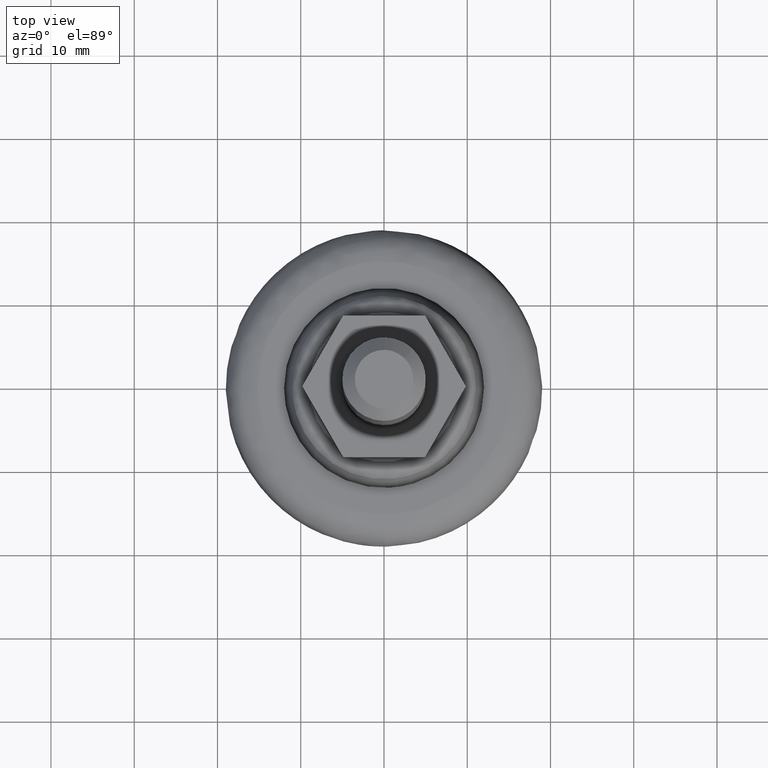
[diagram: clean part render]
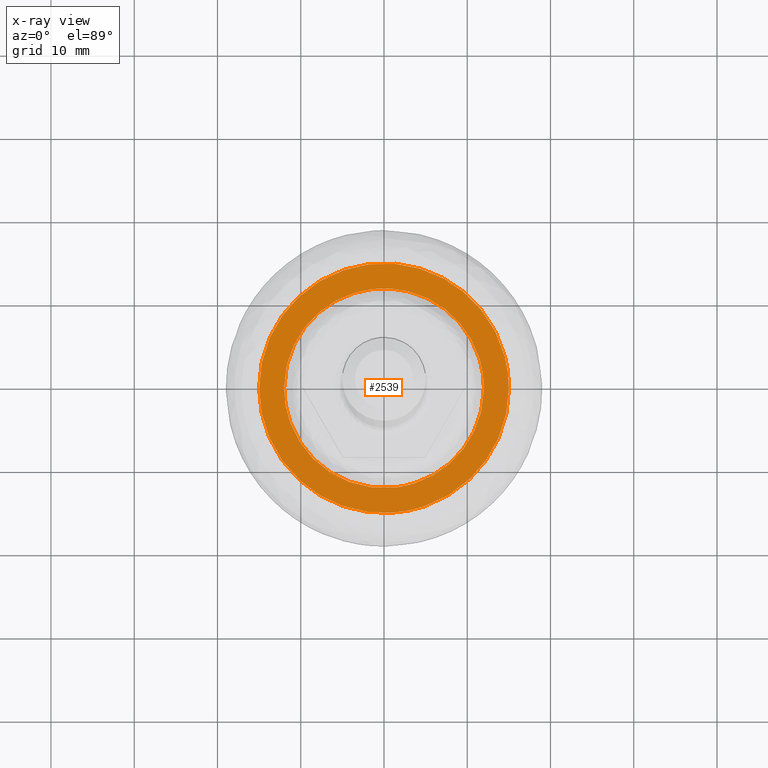
[diagram: x-ray — body ghosted, one internal face saturated and labeled with its STEP entity id]
A machine part, top view, then the same camera in x-ray: the body is ghosted and one INTERNAL B-rep face — a face not visible from any outside direction — is saturated and labeled: STEP entity #2539.
In plain terms, the highlighted face is a freeform B-spline surface patch.
Its self-contained STEP definition (entity closure, byte-faithful):
#1238=CARTESIAN_POINT('',(-1.770494747785739,14.895145126775560,5.599999999999231));
#1239=VERTEX_POINT('',#1238);
#1240=CARTESIAN_POINT('',(15.0,0.0,5.599999999999881));
#1241=VERTEX_POINT('',#1240);
#1242=CARTESIAN_POINT('',(-1.770494747785739,14.895145126775565,5.599999999999232));
#1243=CARTESIAN_POINT('',(-0.888352309519666,15.000000000000002,5.599999999999880));
#1244=CARTESIAN_POINT('',(0.0,15.0,5.599999999999881));
#1245=CARTESIAN_POINT('',(14.999999999999996,14.999999999999996,5.599999999999882));
#1246=CARTESIAN_POINT('',(15.0,0.0,5.599999999999881));
#1254=(BOUNDED_CURVE()B_SPLINE_CURVE(2,(#1242,#1243,#1244,#1245,#1246),.UNSPECIFIED.,.F.,.U.)B_SPLINE_CURVE_WITH_KNOTS((3,2,3),(0.229562686507245,0.250000000000000,0.500000000000000),.UNSPECIFIED.)CURVE()GEOMETRIC_REPRESENTATION_ITEM()RATIONAL_B_SPLINE_CURVE((0.956027171660564,0.976056197868829,1.0,0.707106781186547,1.0))REPRESENTATION_ITEM(''));
#1255=EDGE_CURVE('',#1239,#1241,#1254,.T.);
#1257=CARTESIAN_POINT('',(0.915726412715349,-14.972022079099821,5.599999999999865));
#1258=VERTEX_POINT('',#1257);
#1259=CARTESIAN_POINT('',(15.0,0.0,5.599999999999881));
#1260=CARTESIAN_POINT('',(14.999999999999995,-14.110592590174056,5.599999999999881));
#1261=CARTESIAN_POINT('',(0.915726412715349,-14.972022079099828,5.599999999999865));
#1269=(BOUNDED_CURVE()B_SPLINE_CURVE(2,(#1259,#1260,#1261),.UNSPECIFIED.,.F.,.U.)B_SPLINE_CURVE_WITH_KNOTS((3,3),(0.500000000000000,0.739332981606866),.UNSPECIFIED.)CURVE()GEOMETRIC_REPRESENTATION_ITEM()RATIONAL_B_SPLINE_CURVE((1.0,0.719603970595777,0.976072083175867))REPRESENTATION_ITEM(''));
#1270=EDGE_CURVE('',#1241,#1258,#1269,.T.);
#1337=CARTESIAN_POINT('',(-15.0,0.0,5.599999999999881));
#1338=VERTEX_POINT('',#1337);
#1339=CARTESIAN_POINT('',(-15.0,0.0,5.599999999999881));
#1340=CARTESIAN_POINT('',(-15.000000000000005,13.322634797717694,5.599999999999881));
#1341=CARTESIAN_POINT('',(-1.770494747785739,14.895145126775565,5.599999999999232));
#1349=(BOUNDED_CURVE()B_SPLINE_CURVE(2,(#1339,#1340,#1341),.UNSPECIFIED.,.F.,.U.)B_SPLINE_CURVE_WITH_KNOTS((3,3),(0.0,0.229562686507245),.UNSPECIFIED.)CURVE()GEOMETRIC_REPRESENTATION_ITEM()RATIONAL_B_SPLINE_CURVE((1.0,0.731050583317718,0.956027171660564))REPRESENTATION_ITEM(''));
#1350=EDGE_CURVE('',#1338,#1239,#1349,.T.);
#1384=CARTESIAN_POINT('',(0.915726412715349,-14.972022079099828,5.599999999999865));
#1385=CARTESIAN_POINT('',(0.458290606969377,-15.000000000000002,5.599999999999881));
#1386=CARTESIAN_POINT('',(0.0,-15.0,5.599999999999881));
#1387=CARTESIAN_POINT('',(-14.999999999999996,-14.999999999999996,5.599999999999882));
#1388=CARTESIAN_POINT('',(-15.0,0.0,5.599999999999881));
#1396=(BOUNDED_CURVE()B_SPLINE_CURVE(2,(#1384,#1385,#1386,#1387,#1388),.UNSPECIFIED.,.F.,.U.)B_SPLINE_CURVE_WITH_KNOTS((3,2,3),(0.739332981606866,0.750000000000000,1.0),.UNSPECIFIED.)CURVE()GEOMETRIC_REPRESENTATION_ITEM()RATIONAL_B_SPLINE_CURVE((0.976072083175867,0.987502810590771,1.0,0.707106781186547,1.0))REPRESENTATION_ITEM(''));
#1397=EDGE_CURVE('',#1258,#1338,#1396,.T.);
#2302=CARTESIAN_POINT('',(12.000000201346939,0.0,5.599995925281528));
#2303=VERTEX_POINT('',#2302);
#2317=CARTESIAN_POINT('',(-11.999999880277160,0.0,5.599999999999890));
#2318=VERTEX_POINT('',#2317);
#2319=CARTESIAN_POINT('',(-11.999999880277160,0.0,5.599999999999890));
#2320=CARTESIAN_POINT('',(-11.999999880277159,11.999999880277159,5.599999999999890));
#2321=CARTESIAN_POINT('',(0.000000160534888,11.999999880277160,5.599997962640709));
#2322=CARTESIAN_POINT('',(12.000000201346934,11.999999880277159,5.599995925281528));
#2323=CARTESIAN_POINT('',(12.000000201346939,0.0,5.599995925281528));
#2331=(BOUNDED_CURVE()B_SPLINE_CURVE(2,(#2319,#2320,#2321,#2322,#2323),.UNSPECIFIED.,.F.,.U.)B_SPLINE_CURVE_WITH_KNOTS((3,2,3),(0.0,0.250000000000000,0.500000000000000),.UNSPECIFIED.)CURVE()GEOMETRIC_REPRESENTATION_ITEM()RATIONAL_B_SPLINE_CURVE((1.0,0.707106781186547,1.0,0.707106781186547,1.0))REPRESENTATION_ITEM(''));
#2332=EDGE_CURVE('',#2318,#2303,#2331,.T.);
#2334=CARTESIAN_POINT('',(1.385554157664083,-11.919741484824790,5.599999861191618));
#2335=VERTEX_POINT('',#2334);
#2336=CARTESIAN_POINT('',(1.385554157664083,-11.919741484824792,5.599999861191619));
#2337=CARTESIAN_POINT('',(0.695101567559153,-11.999999880277159,5.599999999999890));
#2338=CARTESIAN_POINT('',(0.0,-11.999999880277160,5.599999999999890));
#2339=CARTESIAN_POINT('',(-11.999999880277159,-11.999999880277159,5.599999999999890));
#2340=CARTESIAN_POINT('',(-11.999999880277160,0.0,5.599999999999890));
#2348=(BOUNDED_CURVE()B_SPLINE_CURVE(2,(#2336,#2337,#2338,#2339,#2340),.UNSPECIFIED.,.F.,.U.)B_SPLINE_CURVE_WITH_KNOTS((3,2,3),(0.730000235313903,0.750000000000000,1.0),.UNSPECIFIED.)CURVE()GEOMETRIC_REPRESENTATION_ITEM()RATIONAL_B_SPLINE_CURVE((0.956886581345987,0.976568818182309,1.0,0.707106781186547,1.0))REPRESENTATION_ITEM(''));
#2349=EDGE_CURVE('',#2335,#2318,#2348,.T.);
#2392=CARTESIAN_POINT('',(12.000000201346939,0.0,5.599995925281528));
#2393=CARTESIAN_POINT('',(12.000000041442814,-10.685915274128932,5.599997893236573));
#2394=CARTESIAN_POINT('',(1.385554157664083,-11.919741484824792,5.599999861191619));
#2402=(BOUNDED_CURVE()B_SPLINE_CURVE(2,(#2392,#2393,#2394),.UNSPECIFIED.,.F.,.U.)B_SPLINE_CURVE_WITH_KNOTS((3,3),(0.500000000000000,0.730000235313903),.UNSPECIFIED.)CURVE()GEOMETRIC_REPRESENTATION_ITEM()RATIONAL_B_SPLINE_CURVE((1.0,0.730537963004238,0.956886581345987))REPRESENTATION_ITEM(''));
#2403=EDGE_CURVE('',#2303,#2335,#2402,.T.);
#2523=CARTESIAN_POINT('',(-16.498499941854181,-16.498135418423988,5.599999999999881));
#2524=CARTESIAN_POINT('',(16.498500746516889,-16.498135418423988,5.599999999999881));
#2525=CARTESIAN_POINT('',(-16.498499941854181,16.498227149972301,5.599999999999881));
#2526=CARTESIAN_POINT('',(16.498500746516889,16.498227149972301,5.599999999999881));
#2527=B_SPLINE_SURFACE_WITH_KNOTS('',1,1,((#2523,#2525),(#2524,#2526)),.UNSPECIFIED.,.F.,.F.,.U.,(2,2),(2,2),(0.0,32.997000688371060),(0.0,32.996362568396293),.UNSPECIFIED.);
#2528=ORIENTED_EDGE('',*,*,#1397,.F.);
#2529=ORIENTED_EDGE('',*,*,#1270,.F.);
#2530=ORIENTED_EDGE('',*,*,#1255,.F.);
#2531=ORIENTED_EDGE('',*,*,#1350,.F.);
#2532=EDGE_LOOP('',(#2528,#2529,#2530,#2531));
#2533=FACE_OUTER_BOUND('',#2532,.T.);
#2534=ORIENTED_EDGE('',*,*,#2332,.T.);
#2535=ORIENTED_EDGE('',*,*,#2403,.T.);
#2536=ORIENTED_EDGE('',*,*,#2349,.T.);
#2537=EDGE_LOOP('',(#2534,#2535,#2536));
#2538=FACE_BOUND('',#2537,.T.);
#2539=ADVANCED_FACE('',(#2533,#2538),#2527,.T.);